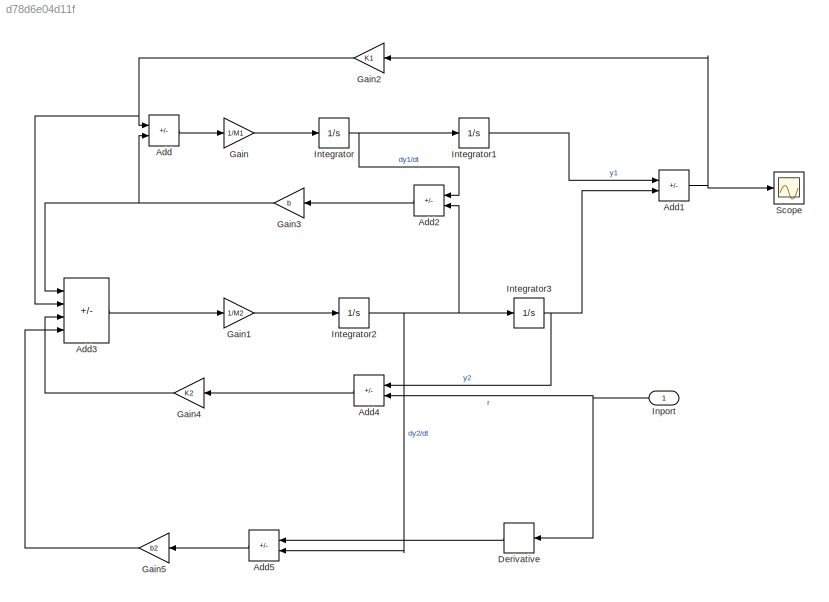
MODEL slx_d78d6e04d11f
KIND model
CONFIG AbsTol = auto
CONFIG EnableMultiTasking = off
CONFIG FixedStep = auto
CONFIG InitFcn = th = linspace(0,3*pi) ;\nr=0.1*sin(th) ; \nr(th>pi)=0 ;\nplot(th,r,'linewidth',5);
CONFIG MaxStep = auto
CONFIG MinStep = auto
CONFIG RelTol = 1e-3
CONFIG SampleTimeConstraint = Unconstrained
CONFIG Solver = VariableStepAuto
CONFIG SolverName = VariableStepAuto
CONFIG StartTime = 0.0
CONFIG StopTime = 100.0
BLOCK [Sum] Add
  IconShape = rectangular
  Inputs = --
  Ports = [2, 1]
BLOCK [Sum] Add1
  IconShape = rectangular
  Inputs = +-
  Ports = [2, 1]
BLOCK [Sum] Add2
  IconShape = rectangular
  Inputs = +-
  Ports = [2, 1]
BLOCK [Sum] Add3
  IconShape = rectangular
  Inputs = ++-+
  Ports = [4, 1]
BLOCK [Sum] Add4
  IconShape = rectangular
  Inputs = +-
  Ports = [2, 1]
BLOCK [Sum] Add5
  IconShape = rectangular
  Inputs = +-
  Ports = [2, 1]
BLOCK [Derivative] Derivative
BLOCK [Gain] Gain
  Gain = 1/M1
BLOCK [Gain] Gain1
  Gain = 1/M2
BLOCK [Gain] Gain2
  Gain = K1
BLOCK [Gain] Gain3
  Gain = b
BLOCK [Gain] Gain4
  Gain = K2
BLOCK [Gain] Gain5
  Gain = b2
BLOCK [Inport] Inport
  PortDimensions = [199]
BLOCK [Integrator] Integrator
  Ports = [1, 1]
BLOCK [Integrator] Integrator1
  Ports = [1, 1]
BLOCK [Integrator] Integrator2
  Ports = [1, 1]
BLOCK [Integrator] Integrator3
  Ports = [1, 1]
BLOCK [Scope] Scope
  Floating = off
  NumInputPorts = 1
  Ports = [1]
  ScopeSpecificationString = Simulink.scopes.TimeScopeBlockCfg('CurrentConfiguration', extmgr.ConfigurationSet(extmgr.Configuration('Core','General UI',true),extmgr.Configuration('Core','Source UI',true),extmgr.Configuration('Sources','WiredSimulink',true),extmgr.Configuration('Visuals','Time Domain',true,'SerializedDisplays',{struct('MinYLimReal','-10.64786','MaxYLimReal','9.68189','YLabelReal','','MinYLimMag','0.00000','Max...<+3429ch>
NET Add1:1 -> Gain2:1, Scope:1
LINE Add2:1 -> Gain3:1
LINE Add3:1 -> Gain1:1
LINE Add4:1 -> Gain4:1
LINE Add5:1 -> Gain5:1
LINE Add:1 -> Gain:1
LINE Derivative:1 -> Add5:1
LINE Gain1:1 -> Integrator2:1
NET Gain2:1 -> Add3:2, Add:1
NET Gain3:1 -> Add3:1, Add:2
LINE Gain4:1 -> Add3:3
LINE Gain5:1 -> Add3:4
LINE Gain:1 -> Integrator:1
NET Inport:1 -> Add4:2, Derivative:1
LINE Integrator1:1 -> Add1:1
NET Integrator2:1 -> Add2:2, Add5:2, Integrator3:1
NET Integrator3:1 -> Add1:2, Add4:1
NET Integrator:1 -> Add2:1, Integrator1:1
note: NET lines group one-source signal fan-out (src -> all destinations, sorted); 1:1 wires keep LINE
